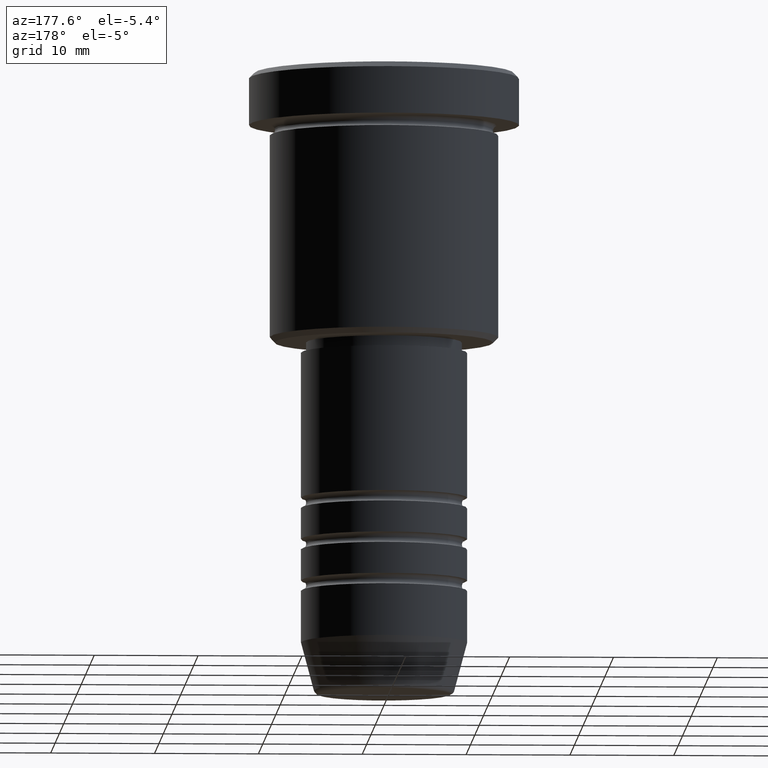
[diagram: clean part render]
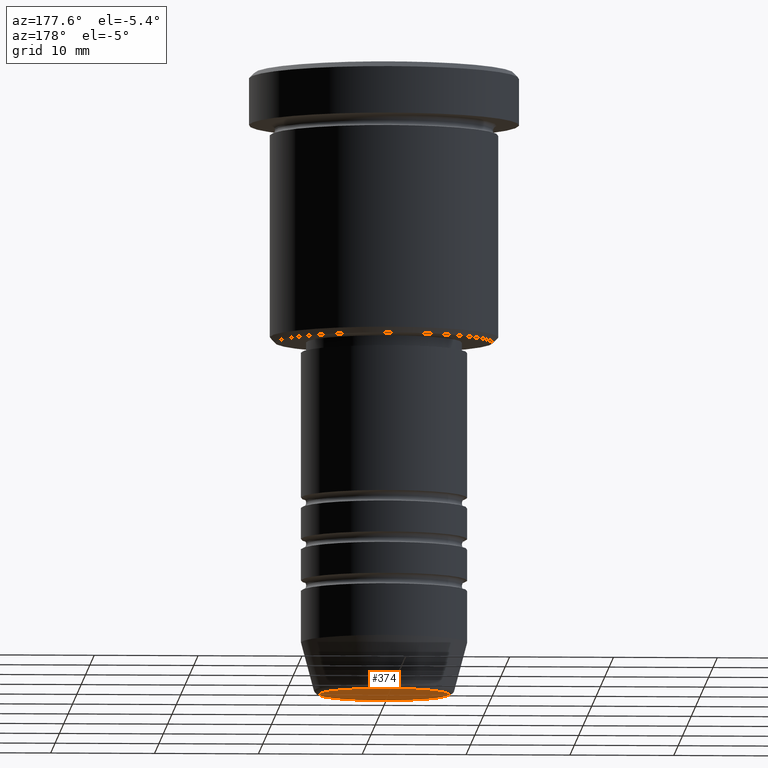
[diagram: same view with one face highlighted and labeled with its STEP entity id]
A machine part, auxiliary view. The second image highlights one B-rep face of the part: STEP entity #374.
In plain terms, the highlighted planar face has unit normal (0, -0, 1).
Its self-contained STEP definition (entity closure, byte-faithful):
#14 = CARTESIAN_POINT ( 'NONE',  ( 0.000000000000000000, 0.000000000000000000, -60.00000000000000000 ) ) ;
#62 = ORIENTED_EDGE ( 'NONE', *, *, #512, .T. ) ;
#82 = DIRECTION ( 'NONE',  ( 0.000000000000000000, 0.000000000000000000, -1.000000000000000000 ) ) ;
#183 = CARTESIAN_POINT ( 'NONE',  ( 0.000000000000000000, 0.000000000000000000, -60.00000000000000000 ) ) ;
#253 = AXIS2_PLACEMENT_3D ( 'NONE', #183, #82, #544 ) ;
#261 = EDGE_LOOP ( 'NONE', ( #62, #769 ) ) ;
#276 = CARTESIAN_POINT ( 'NONE',  ( 6.276590543854902116, 0.000000000000000000, -60.00000000000000000 ) ) ;
#331 = EDGE_CURVE ( 'NONE', #577, #701, #986, .T. ) ;
#374 = ADVANCED_FACE ( 'NONE', ( #831 ), #1085, .F. ) ;
#491 = DIRECTION ( 'NONE',  ( 0.000000000000000000, 0.000000000000000000, -1.000000000000000000 ) ) ;
#512 = EDGE_CURVE ( 'NONE', #701, #577, #1116, .T. ) ;
#544 = DIRECTION ( 'NONE',  ( 1.000000000000000000, 0.000000000000000000, 0.000000000000000000 ) ) ;
#577 = VERTEX_POINT ( 'NONE', #690 ) ;
#596 = AXIS2_PLACEMENT_3D ( 'NONE', #958, #491, #866 ) ;
#690 = CARTESIAN_POINT ( 'NONE',  ( -6.276590543854902116, 7.982336011935118383E-16, -60.00000000000000000 ) ) ;
#701 = VERTEX_POINT ( 'NONE', #276 ) ;
#743 = DIRECTION ( 'NONE',  ( 0.000000000000000000, -0.000000000000000000, 1.000000000000000000 ) ) ;
#769 = ORIENTED_EDGE ( 'NONE', *, *, #331, .T. ) ;
#831 = FACE_OUTER_BOUND ( 'NONE', #261, .T. ) ;
#866 = DIRECTION ( 'NONE',  ( 1.000000000000000000, 0.000000000000000000, 0.000000000000000000 ) ) ;
#906 = DIRECTION ( 'NONE',  ( 1.000000000000000000, 0.000000000000000000, 0.000000000000000000 ) ) ;
#958 = CARTESIAN_POINT ( 'NONE',  ( 0.000000000000000000, 0.000000000000000000, -60.00000000000000000 ) ) ;
#986 = CIRCLE ( 'NONE', #253, 6.276590543854902116 ) ;
#1081 = AXIS2_PLACEMENT_3D ( 'NONE', #14, #743, #906 ) ;
#1085 = PLANE ( 'NONE',  #1081 ) ;
#1116 = CIRCLE ( 'NONE', #596, 6.276590543854902116 ) ;